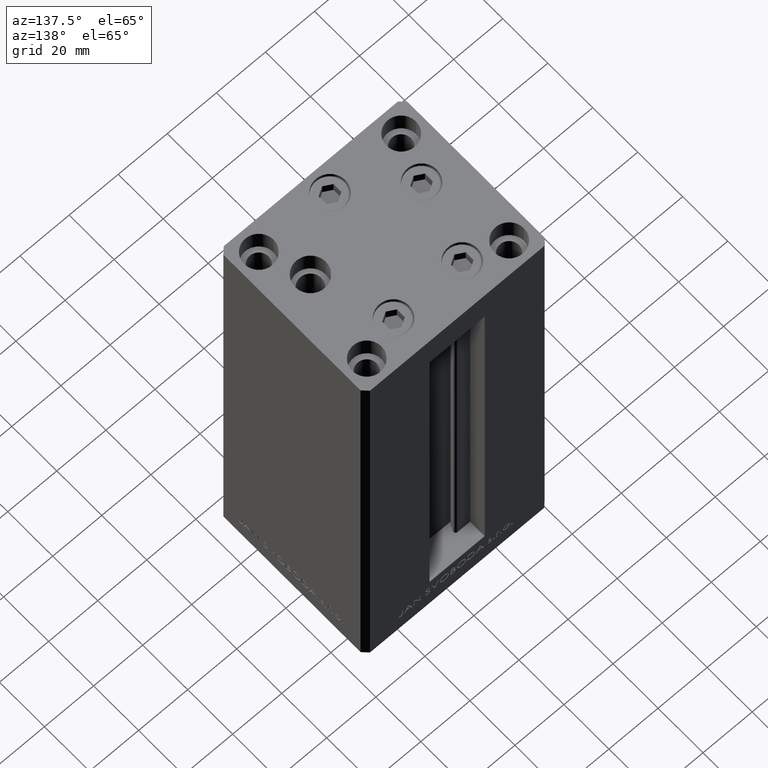
[diagram: clean part render]
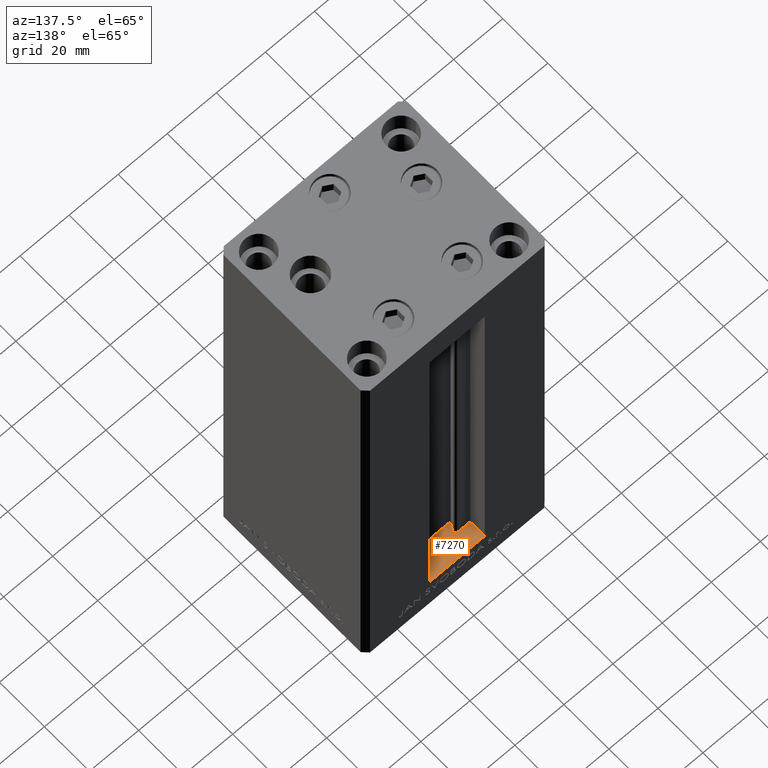
[diagram: same view with one face highlighted and labeled with its STEP entity id]
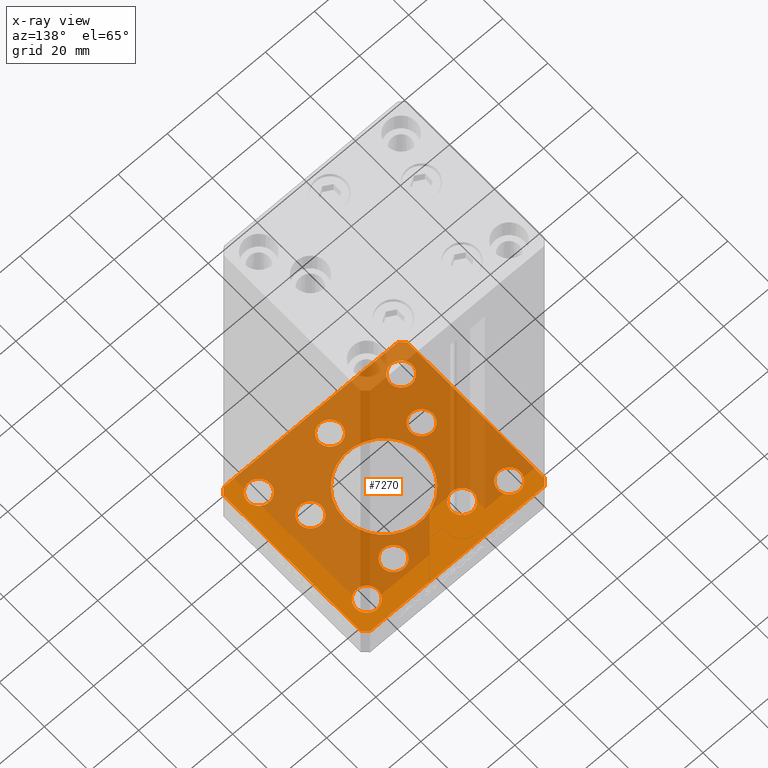
[diagram: x-ray of the same camera — body ghosted, the highlighted face saturated]
A machine part, auxiliary view. The second image highlights one B-rep face of the part: STEP entity #7270.
The next image is the same camera in x-ray: the body ghosted, the highlighted face saturated — about 74% of this face is hidden behind the body in this view.
In plain terms, the highlighted planar face has unit normal (0, 0, -1).
Its self-contained STEP definition (entity closure, byte-faithful):
#744 = EDGE_CURVE ( 'NONE', #14242, #25635, #47192, .T. ) ;
#753 = DIRECTION ( 'NONE',  ( 1.000000000000000000, 0.000000000000000000, 0.000000000000000000 ) ) ;
#813 = LINE ( 'NONE', #15895, #35857 ) ;
#921 = VECTOR ( 'NONE', #43430, 1000.000000000000000 ) ;
#1585 = FACE_BOUND ( 'NONE', #12310, .T. ) ;
#1620 = CARTESIAN_POINT ( 'NONE',  ( -24.50000000000000000, -23.99999999999999645, -15.00000000000000000 ) ) ;
#1739 = DIRECTION ( 'NONE',  ( -0.000000000000000000, 0.000000000000000000, 1.000000000000000000 ) ) ;
#2234 = DIRECTION ( 'NONE',  ( 1.000000000000000000, 0.000000000000000000, 0.000000000000000000 ) ) ;
#2283 = AXIS2_PLACEMENT_3D ( 'NONE', #8196, #29996, #45091 ) ;
#3581 = ORIENTED_EDGE ( 'NONE', *, *, #5545, .T. ) ;
#4059 = CARTESIAN_POINT ( 'NONE',  ( -13.99106857963324124, 19.50000000000000000, -15.00000000000000000 ) ) ;
#4102 = CIRCLE ( 'NONE', #19097, 4.500000000000000888 ) ;
#4244 = DIRECTION ( 'NONE',  ( -0.000000000000000000, 0.000000000000000000, 1.000000000000000000 ) ) ;
#4296 = EDGE_CURVE ( 'NONE', #23023, #23320, #14317, .T. ) ;
#4532 = CARTESIAN_POINT ( 'NONE',  ( 37.50000000000000711, -30.49999999999992895, -15.00000000000000000 ) ) ;
#4542 = EDGE_CURVE ( 'NONE', #34844, #5459, #24899, .T. ) ;
#4612 = CARTESIAN_POINT ( 'NONE',  ( 0.000000000000000000, 0.000000000000000000, -15.00000000000000000 ) ) ;
#4618 = EDGE_CURVE ( 'NONE', #15342, #26009, #10072, .T. ) ;
#4983 = AXIS2_PLACEMENT_3D ( 'NONE', #21015, #1739, #2234 ) ;
#5052 = FACE_BOUND ( 'NONE', #15544, .T. ) ;
#5271 = CARTESIAN_POINT ( 'NONE',  ( 35.50000000000000000, 32.49999999999999289, -15.00000000000000000 ) ) ;
#5459 = VERTEX_POINT ( 'NONE', #45378 ) ;
#5497 = CIRCLE ( 'NONE', #33140, 4.499999999999999112 ) ;
#5545 = EDGE_CURVE ( 'NONE', #13033, #47146, #40229, .T. ) ;
#5819 = VERTEX_POINT ( 'NONE', #44964 ) ;
#5919 = VERTEX_POINT ( 'NONE', #41724 ) ;
#6020 = FACE_BOUND ( 'NONE', #42254, .T. ) ;
#6089 = DIRECTION ( 'NONE',  ( -0.000000000000000000, 0.000000000000000000, 1.000000000000000000 ) ) ;
#6096 = CARTESIAN_POINT ( 'NONE',  ( -4.500000000000001776, -24.00000000000001066, -15.00000000000000000 ) ) ;
#6179 = EDGE_CURVE ( 'NONE', #47219, #10048, #23647, .T. ) ;
#6272 = VERTEX_POINT ( 'NONE', #48115 ) ;
#6371 = DIRECTION ( 'NONE',  ( 2.275047181608926165E-16, -1.000000000000000000, 0.000000000000000000 ) ) ;
#6967 = CARTESIAN_POINT ( 'NONE',  ( 18.49106857963324657, 19.50000000000000000, -15.00000000000000000 ) ) ;
#7041 = DIRECTION ( 'NONE',  ( 1.000000000000000000, 0.000000000000000000, 0.000000000000000000 ) ) ;
#7270 = ADVANCED_FACE ( 'NONE', ( #1585, #20614, #36202, #5052, #46609, #43393, #39921, #24075, #35723, #6020, #47083 ), #20126, .F. ) ;
#7585 = VERTEX_POINT ( 'NONE', #31944 ) ;
#7775 = DIRECTION ( 'NONE',  ( 1.000000000000000000, 0.000000000000000000, 0.000000000000000000 ) ) ;
#8165 = EDGE_LOOP ( 'NONE', ( #24904, #24652 ) ) ;
#8196 = CARTESIAN_POINT ( 'NONE',  ( 0.000000000000000000, -24.00000000000001066, -15.00000000000000000 ) ) ;
#8327 = EDGE_CURVE ( 'NONE', #7585, #34844, #9713, .T. ) ;
#8768 = CIRCLE ( 'NONE', #34053, 4.500000000000000888 ) ;
#9147 = DIRECTION ( 'NONE',  ( 1.000000000000000000, 0.000000000000000000, 0.000000000000000000 ) ) ;
#9239 = DIRECTION ( 'NONE',  ( 1.000000000000000000, 0.000000000000000000, 0.000000000000000000 ) ) ;
#9365 = VERTEX_POINT ( 'NONE', #22545 ) ;
#9419 = CARTESIAN_POINT ( 'NONE',  ( 29.00000000000000355, -23.99999999999999645, -15.00000000000000000 ) ) ;
#9467 = ORIENTED_EDGE ( 'NONE', *, *, #8327, .F. ) ;
#9492 = DIRECTION ( 'NONE',  ( 0.000000000000000000, -0.000000000000000000, -1.000000000000000000 ) ) ;
#9532 = AXIS2_PLACEMENT_3D ( 'NONE', #26018, #14409, #21816 ) ;
#9670 = CIRCLE ( 'NONE', #37328, 16.00000000000000000 ) ;
#9713 = LINE ( 'NONE', #5271, #42433 ) ;
#10048 = VERTEX_POINT ( 'NONE', #30594 ) ;
#10072 = CIRCLE ( 'NONE', #26647, 4.500000000000005329 ) ;
#11134 = EDGE_CURVE ( 'NONE', #5459, #5819, #25401, .T. ) ;
#11178 = ORIENTED_EDGE ( 'NONE', *, *, #41470, .T. ) ;
#11417 = VERTEX_POINT ( 'NONE', #17439 ) ;
#11992 = DIRECTION ( 'NONE',  ( -0.000000000000000000, 0.000000000000000000, 1.000000000000000000 ) ) ;
#12137 = DIRECTION ( 'NONE',  ( 1.000000000000000000, 0.000000000000000000, 0.000000000000000000 ) ) ;
#12310 = EDGE_LOOP ( 'NONE', ( #36556, #19784 ) ) ;
#12435 = CIRCLE ( 'NONE', #40110, 4.500000000000005329 ) ;
#12497 = VECTOR ( 'NONE', #6371, 1000.000000000000000 ) ;
#12708 = CARTESIAN_POINT ( 'NONE',  ( -29.00000000000000000, -23.99999999999999645, -15.00000000000000000 ) ) ;
#12714 = EDGE_CURVE ( 'NONE', #42993, #30898, #48106, .T. ) ;
#12783 = CARTESIAN_POINT ( 'NONE',  ( 35.50000000000001421, -32.49999999999992184, -15.00000000000000000 ) ) ;
#12813 = AXIS2_PLACEMENT_3D ( 'NONE', #19911, #27322, #45905 ) ;
#12946 = CARTESIAN_POINT ( 'NONE',  ( 0.000000000000000000, 0.000000000000000000, -15.00000000000000000 ) ) ;
#13019 = VERTEX_POINT ( 'NONE', #30414 ) ;
#13033 = VERTEX_POINT ( 'NONE', #23220 ) ;
#13883 = ORIENTED_EDGE ( 'NONE', *, *, #11134, .F. ) ;
#14242 = VERTEX_POINT ( 'NONE', #16970 ) ;
#14298 = ORIENTED_EDGE ( 'NONE', *, *, #48499, .T. ) ;
#14317 = LINE ( 'NONE', #48686, #41683 ) ;
#14409 = DIRECTION ( 'NONE',  ( -0.000000000000000000, 0.000000000000000000, 1.000000000000000000 ) ) ;
#14561 = EDGE_CURVE ( 'NONE', #10048, #47219, #16457, .T. ) ;
#15342 = VERTEX_POINT ( 'NONE', #32015 ) ;
#15544 = EDGE_LOOP ( 'NONE', ( #14298, #18653 ) ) ;
#15895 = CARTESIAN_POINT ( 'NONE',  ( -37.50000000000000000, -30.50000000000004263, -15.00000000000000000 ) ) ;
#16211 = CARTESIAN_POINT ( 'NONE',  ( -27.12741699796953299, -8.000000000000000000, -15.00000000000000000 ) ) ;
#16284 = VERTEX_POINT ( 'NONE', #38228 ) ;
#16457 = CIRCLE ( 'NONE', #23544, 4.500000000000000888 ) ;
#16516 = EDGE_LOOP ( 'NONE', ( #32258, #13883, #39179, #9467, #39554, #17903, #34012, #47889 ) ) ;
#16662 = DIRECTION ( 'NONE',  ( 1.000000000000000000, 0.000000000000000000, 0.000000000000000000 ) ) ;
#16764 = ORIENTED_EDGE ( 'NONE', *, *, #22913, .T. ) ;
#16970 = CARTESIAN_POINT ( 'NONE',  ( -33.50000000000000000, -23.99999999999999645, -15.00000000000000000 ) ) ;
#17412 = CIRCLE ( 'NONE', #45882, 16.00000000000000000 ) ;
#17439 = CARTESIAN_POINT ( 'NONE',  ( -33.50000000000000000, 24.00000000000000711, -15.00000000000000000 ) ) ;
#17850 = EDGE_CURVE ( 'NONE', #9365, #35412, #45064, .T. ) ;
#17903 = ORIENTED_EDGE ( 'NONE', *, *, #4296, .F. ) ;
#18035 = CARTESIAN_POINT ( 'NONE',  ( 37.50000000000000711, 30.50000000000001421, -15.00000000000000000 ) ) ;
#18082 = ORIENTED_EDGE ( 'NONE', *, *, #42364, .T. ) ;
#18466 = CARTESIAN_POINT ( 'NONE',  ( -37.50000000000001421, 30.50000000000000000, -15.00000000000000000 ) ) ;
#18653 = ORIENTED_EDGE ( 'NONE', *, *, #24824, .T. ) ;
#19018 = EDGE_LOOP ( 'NONE', ( #39484, #18082 ) ) ;
#19097 = AXIS2_PLACEMENT_3D ( 'NONE', #24056, #42643, #39163 ) ;
#19136 = DIRECTION ( 'NONE',  ( -0.000000000000000000, 0.000000000000000000, 1.000000000000000000 ) ) ;
#19156 = DIRECTION ( 'NONE',  ( 0.000000000000000000, -0.000000000000000000, -1.000000000000000000 ) ) ;
#19261 = EDGE_LOOP ( 'NONE', ( #34443, #48061 ) ) ;
#19484 = CARTESIAN_POINT ( 'NONE',  ( 0.000000000000000000, 0.000000000000000000, -15.00000000000000000 ) ) ;
#19688 = DIRECTION ( 'NONE',  ( 0.000000000000000000, -0.000000000000000000, -1.000000000000000000 ) ) ;
#19719 = EDGE_CURVE ( 'NONE', #32319, #6272, #17412, .T. ) ;
#19784 = ORIENTED_EDGE ( 'NONE', *, *, #29405, .F. ) ;
#19911 = CARTESIAN_POINT ( 'NONE',  ( 22.62741699796953299, -8.000000000000000000, -15.00000000000000000 ) ) ;
#19945 = CIRCLE ( 'NONE', #12813, 4.500000000000000888 ) ;
#20123 = EDGE_CURVE ( 'NONE', #13019, #40271, #34008, .T. ) ;
#20126 = PLANE ( 'NONE',  #21819 ) ;
#20335 = EDGE_CURVE ( 'NONE', #40271, #13019, #30862, .T. ) ;
#20348 = DIRECTION ( 'NONE',  ( -1.000000000000000000, -1.954618001100627573E-16, 0.000000000000000000 ) ) ;
#20525 = AXIS2_PLACEMENT_3D ( 'NONE', #38368, #4244, #12137 ) ;
#20596 = CIRCLE ( 'NONE', #46676, 4.499999999999997335 ) ;
#20614 = FACE_BOUND ( 'NONE', #35582, .T. ) ;
#21013 = CARTESIAN_POINT ( 'NONE',  ( -22.62741699796953299, -8.000000000000000000, -15.00000000000000000 ) ) ;
#21015 = CARTESIAN_POINT ( 'NONE',  ( -29.00000000000000000, 24.00000000000000711, -15.00000000000000000 ) ) ;
#21170 = CARTESIAN_POINT ( 'NONE',  ( 13.99106857963324124, 19.50000000000000000, -15.00000000000000000 ) ) ;
#21363 = AXIS2_PLACEMENT_3D ( 'NONE', #9419, #24011, #24747 ) ;
#21655 = DIRECTION ( 'NONE',  ( 1.000000000000000000, 0.000000000000000000, 0.000000000000000000 ) ) ;
#21816 = DIRECTION ( 'NONE',  ( 1.000000000000000000, 0.000000000000000000, 0.000000000000000000 ) ) ;
#21819 = AXIS2_PLACEMENT_3D ( 'NONE', #12946, #24316, #16662 ) ;
#22065 = CARTESIAN_POINT ( 'NONE',  ( 22.62741699796953299, -8.000000000000000000, -15.00000000000000000 ) ) ;
#22473 = ORIENTED_EDGE ( 'NONE', *, *, #43722, .T. ) ;
#22545 = CARTESIAN_POINT ( 'NONE',  ( -35.50000000000001421, -32.50000000000000711, -15.00000000000000000 ) ) ;
#22781 = ORIENTED_EDGE ( 'NONE', *, *, #744, .F. ) ;
#22788 = EDGE_CURVE ( 'NONE', #23320, #7585, #32531, .T. ) ;
#22913 = EDGE_CURVE ( 'NONE', #38557, #11417, #28575, .T. ) ;
#23023 = VERTEX_POINT ( 'NONE', #4532 ) ;
#23032 = EDGE_CURVE ( 'NONE', #25635, #14242, #4102, .T. ) ;
#23220 = CARTESIAN_POINT ( 'NONE',  ( -18.49106857963323947, 19.50000000000000000, -15.00000000000000000 ) ) ;
#23320 = VERTEX_POINT ( 'NONE', #18035 ) ;
#23393 = DIRECTION ( 'NONE',  ( 1.000000000000000000, 0.000000000000000000, 0.000000000000000000 ) ) ;
#23544 = AXIS2_PLACEMENT_3D ( 'NONE', #38448, #19156, #7775 ) ;
#23647 = CIRCLE ( 'NONE', #31542, 4.500000000000000888 ) ;
#23789 = AXIS2_PLACEMENT_3D ( 'NONE', #25813, #30511, #44649 ) ;
#23834 = CARTESIAN_POINT ( 'NONE',  ( 35.50000000000001421, -32.49999999999992184, -15.00000000000000000 ) ) ;
#24011 = DIRECTION ( 'NONE',  ( -0.000000000000000000, 0.000000000000000000, 1.000000000000000000 ) ) ;
#24056 = CARTESIAN_POINT ( 'NONE',  ( -29.00000000000000000, -23.99999999999999645, -15.00000000000000000 ) ) ;
#24075 = FACE_BOUND ( 'NONE', #44027, .T. ) ;
#24153 = CARTESIAN_POINT ( 'NONE',  ( -35.50000000000000711, 32.49999999999997868, -15.00000000000000000 ) ) ;
#24316 = DIRECTION ( 'NONE',  ( -0.000000000000000000, 0.000000000000000000, 1.000000000000000000 ) ) ;
#24424 = CARTESIAN_POINT ( 'NONE',  ( -13.99106857963324124, 19.50000000000000000, -15.00000000000000000 ) ) ;
#24449 = CARTESIAN_POINT ( 'NONE',  ( 16.00000000000000000, 0.000000000000000000, -15.00000000000000000 ) ) ;
#24530 = EDGE_CURVE ( 'NONE', #35412, #23023, #46689, .T. ) ;
#24652 = ORIENTED_EDGE ( 'NONE', *, *, #4618, .T. ) ;
#24747 = DIRECTION ( 'NONE',  ( 1.000000000000000000, 0.000000000000000000, 0.000000000000000000 ) ) ;
#24824 = EDGE_CURVE ( 'NONE', #41229, #5919, #19945, .T. ) ;
#24897 = DIRECTION ( 'NONE',  ( 0.7071067811865463515, 0.7071067811865487940, 0.000000000000000000 ) ) ;
#24899 = LINE ( 'NONE', #24153, #36143 ) ;
#24904 = ORIENTED_EDGE ( 'NONE', *, *, #36622, .T. ) ;
#24970 = CARTESIAN_POINT ( 'NONE',  ( 18.12741699796953299, -8.000000000000000000, -15.00000000000000000 ) ) ;
#25401 = LINE ( 'NONE', #18466, #12497 ) ;
#25635 = VERTEX_POINT ( 'NONE', #1620 ) ;
#25695 = VERTEX_POINT ( 'NONE', #16211 ) ;
#25813 = CARTESIAN_POINT ( 'NONE',  ( -29.00000000000000000, 24.00000000000000711, -15.00000000000000000 ) ) ;
#25821 = CARTESIAN_POINT ( 'NONE',  ( 29.00000000000000000, 24.00000000000000355, -15.00000000000000000 ) ) ;
#26009 = VERTEX_POINT ( 'NONE', #6967 ) ;
#26018 = CARTESIAN_POINT ( 'NONE',  ( 29.00000000000000355, -23.99999999999999645, -15.00000000000000000 ) ) ;
#26312 = EDGE_CURVE ( 'NONE', #11417, #38557, #31827, .T. ) ;
#26647 = AXIS2_PLACEMENT_3D ( 'NONE', #34770, #11992, #45908 ) ;
#26790 = DIRECTION ( 'NONE',  ( 1.000000000000000000, 0.000000000000000000, 0.000000000000000000 ) ) ;
#27155 = DIRECTION ( 'NONE',  ( 0.000000000000000000, -0.000000000000000000, -1.000000000000000000 ) ) ;
#27322 = DIRECTION ( 'NONE',  ( -0.000000000000000000, 0.000000000000000000, 1.000000000000000000 ) ) ;
#27827 = VECTOR ( 'NONE', #24897, 1000.000000000000000 ) ;
#27957 = DIRECTION ( 'NONE',  ( -0.000000000000000000, 0.000000000000000000, 1.000000000000000000 ) ) ;
#28575 = CIRCLE ( 'NONE', #23789, 4.500000000000000888 ) ;
#29405 = EDGE_CURVE ( 'NONE', #6272, #32319, #9670, .T. ) ;
#29470 = ORIENTED_EDGE ( 'NONE', *, *, #26312, .T. ) ;
#29996 = DIRECTION ( 'NONE',  ( -0.000000000000000000, 0.000000000000000000, 1.000000000000000000 ) ) ;
#30211 = CARTESIAN_POINT ( 'NONE',  ( -35.50000000000001421, -32.50000000000000711, -15.00000000000000000 ) ) ;
#30380 = DIRECTION ( 'NONE',  ( 0.000000000000000000, 1.000000000000000000, 0.000000000000000000 ) ) ;
#30414 = CARTESIAN_POINT ( 'NONE',  ( 24.50000000000000711, -23.99999999999999645, -15.00000000000000000 ) ) ;
#30415 = CARTESIAN_POINT ( 'NONE',  ( -24.50000000000000000, 24.00000000000000711, -15.00000000000000000 ) ) ;
#30511 = DIRECTION ( 'NONE',  ( -0.000000000000000000, 0.000000000000000000, 1.000000000000000000 ) ) ;
#30594 = CARTESIAN_POINT ( 'NONE',  ( 24.50000000000000000, 24.00000000000000355, -15.00000000000000000 ) ) ;
#30648 = EDGE_LOOP ( 'NONE', ( #43331, #31003 ) ) ;
#30846 = CIRCLE ( 'NONE', #42696, 4.499999999999997335 ) ;
#30862 = CIRCLE ( 'NONE', #21363, 4.499999999999997335 ) ;
#30885 = DIRECTION ( 'NONE',  ( 1.000000000000000000, 0.000000000000000000, 0.000000000000000000 ) ) ;
#30898 = VERTEX_POINT ( 'NONE', #6096 ) ;
#30998 = DIRECTION ( 'NONE',  ( 0.7071067811865512365, -0.7071067811865439090, 0.000000000000000000 ) ) ;
#31003 = ORIENTED_EDGE ( 'NONE', *, *, #20123, .T. ) ;
#31542 = AXIS2_PLACEMENT_3D ( 'NONE', #25821, #36746, #7041 ) ;
#31827 = CIRCLE ( 'NONE', #4983, 4.500000000000000888 ) ;
#31847 = DIRECTION ( 'NONE',  ( -0.7071067811865524577, -0.7071067811865426878, 0.000000000000000000 ) ) ;
#31944 = CARTESIAN_POINT ( 'NONE',  ( 35.50000000000000000, 32.49999999999999289, -15.00000000000000000 ) ) ;
#32015 = CARTESIAN_POINT ( 'NONE',  ( 9.491068579633235913, 19.50000000000000000, -15.00000000000000000 ) ) ;
#32137 = EDGE_CURVE ( 'NONE', #5819, #9365, #813, .T. ) ;
#32258 = ORIENTED_EDGE ( 'NONE', *, *, #32137, .F. ) ;
#32319 = VERTEX_POINT ( 'NONE', #24449 ) ;
#32343 = AXIS2_PLACEMENT_3D ( 'NONE', #4059, #19136, #26790 ) ;
#32531 = LINE ( 'NONE', #36738, #921 ) ;
#33140 = AXIS2_PLACEMENT_3D ( 'NONE', #24424, #43011, #35330 ) ;
#33938 = VECTOR ( 'NONE', #42076, 1000.000000000000000 ) ;
#34008 = CIRCLE ( 'NONE', #9532, 4.499999999999997335 ) ;
#34012 = ORIENTED_EDGE ( 'NONE', *, *, #24530, .F. ) ;
#34053 = AXIS2_PLACEMENT_3D ( 'NONE', #22065, #38143, #34189 ) ;
#34189 = DIRECTION ( 'NONE',  ( 1.000000000000000000, 0.000000000000000000, 0.000000000000000000 ) ) ;
#34193 = EDGE_LOOP ( 'NONE', ( #11178, #3581 ) ) ;
#34342 = CARTESIAN_POINT ( 'NONE',  ( -35.50000000000000711, 32.49999999999997868, -15.00000000000000000 ) ) ;
#34443 = ORIENTED_EDGE ( 'NONE', *, *, #6179, .F. ) ;
#34645 = DIRECTION ( 'NONE',  ( -0.000000000000000000, 0.000000000000000000, 1.000000000000000000 ) ) ;
#34770 = CARTESIAN_POINT ( 'NONE',  ( 13.99106857963324124, 19.50000000000000000, -15.00000000000000000 ) ) ;
#34844 = VERTEX_POINT ( 'NONE', #34342 ) ;
#35330 = DIRECTION ( 'NONE',  ( 1.000000000000000000, 0.000000000000000000, 0.000000000000000000 ) ) ;
#35412 = VERTEX_POINT ( 'NONE', #23834 ) ;
#35582 = EDGE_LOOP ( 'NONE', ( #35873, #22473 ) ) ;
#35723 = FACE_OUTER_BOUND ( 'NONE', #16516, .T. ) ;
#35857 = VECTOR ( 'NONE', #30998, 1000.000000000000000 ) ;
#35873 = ORIENTED_EDGE ( 'NONE', *, *, #44562, .T. ) ;
#36025 = ORIENTED_EDGE ( 'NONE', *, *, #23032, .F. ) ;
#36143 = VECTOR ( 'NONE', #31847, 1000.000000000000000 ) ;
#36202 = FACE_BOUND ( 'NONE', #19018, .T. ) ;
#36556 = ORIENTED_EDGE ( 'NONE', *, *, #19719, .F. ) ;
#36622 = EDGE_CURVE ( 'NONE', #26009, #15342, #12435, .T. ) ;
#36738 = CARTESIAN_POINT ( 'NONE',  ( 37.50000000000000711, 30.50000000000001421, -15.00000000000000000 ) ) ;
#36746 = DIRECTION ( 'NONE',  ( 0.000000000000000000, -0.000000000000000000, -1.000000000000000000 ) ) ;
#37137 = CIRCLE ( 'NONE', #20525, 4.500000000000001776 ) ;
#37328 = AXIS2_PLACEMENT_3D ( 'NONE', #19484, #27155, #30885 ) ;
#38143 = DIRECTION ( 'NONE',  ( -0.000000000000000000, 0.000000000000000000, 1.000000000000000000 ) ) ;
#38228 = CARTESIAN_POINT ( 'NONE',  ( -18.12741699796953654, -8.000000000000000000, -15.00000000000000000 ) ) ;
#38368 = CARTESIAN_POINT ( 'NONE',  ( 0.000000000000000000, -24.00000000000001066, -15.00000000000000000 ) ) ;
#38448 = CARTESIAN_POINT ( 'NONE',  ( 29.00000000000000000, 24.00000000000000355, -15.00000000000000000 ) ) ;
#38557 = VERTEX_POINT ( 'NONE', #30415 ) ;
#39163 = DIRECTION ( 'NONE',  ( 1.000000000000000000, 0.000000000000000000, 0.000000000000000000 ) ) ;
#39179 = ORIENTED_EDGE ( 'NONE', *, *, #4542, .F. ) ;
#39221 = CARTESIAN_POINT ( 'NONE',  ( 33.50000000000000000, 24.00000000000000355, -15.00000000000000000 ) ) ;
#39484 = ORIENTED_EDGE ( 'NONE', *, *, #12714, .T. ) ;
#39554 = ORIENTED_EDGE ( 'NONE', *, *, #22788, .F. ) ;
#39921 = FACE_BOUND ( 'NONE', #19261, .T. ) ;
#40110 = AXIS2_PLACEMENT_3D ( 'NONE', #21170, #6089, #21655 ) ;
#40229 = CIRCLE ( 'NONE', #32343, 4.499999999999999112 ) ;
#40271 = VERTEX_POINT ( 'NONE', #46083 ) ;
#41229 = VERTEX_POINT ( 'NONE', #24970 ) ;
#41470 = EDGE_CURVE ( 'NONE', #47146, #13033, #5497, .T. ) ;
#41683 = VECTOR ( 'NONE', #30380, 1000.000000000000000 ) ;
#41724 = CARTESIAN_POINT ( 'NONE',  ( 27.12741699796953654, -8.000000000000000000, -15.00000000000000000 ) ) ;
#41830 = CARTESIAN_POINT ( 'NONE',  ( -22.62741699796953299, -8.000000000000000000, -15.00000000000000000 ) ) ;
#42076 = DIRECTION ( 'NONE',  ( 1.000000000000000000, 1.172770800660376149E-15, 0.000000000000000000 ) ) ;
#42254 = EDGE_LOOP ( 'NONE', ( #16764, #29470 ) ) ;
#42364 = EDGE_CURVE ( 'NONE', #30898, #42993, #37137, .T. ) ;
#42433 = VECTOR ( 'NONE', #20348, 1000.000000000000000 ) ;
#42470 = AXIS2_PLACEMENT_3D ( 'NONE', #12708, #9492, #9239 ) ;
#42643 = DIRECTION ( 'NONE',  ( 0.000000000000000000, -0.000000000000000000, -1.000000000000000000 ) ) ;
#42696 = AXIS2_PLACEMENT_3D ( 'NONE', #41830, #34645, #753 ) ;
#42993 = VERTEX_POINT ( 'NONE', #48060 ) ;
#43011 = DIRECTION ( 'NONE',  ( -0.000000000000000000, 0.000000000000000000, 1.000000000000000000 ) ) ;
#43331 = ORIENTED_EDGE ( 'NONE', *, *, #20335, .T. ) ;
#43393 = FACE_BOUND ( 'NONE', #34193, .T. ) ;
#43430 = DIRECTION ( 'NONE',  ( -0.7071067811865524577, 0.7071067811865426878, 0.000000000000000000 ) ) ;
#43722 = EDGE_CURVE ( 'NONE', #25695, #16284, #30846, .T. ) ;
#44027 = EDGE_LOOP ( 'NONE', ( #36025, #22781 ) ) ;
#44562 = EDGE_CURVE ( 'NONE', #16284, #25695, #20596, .T. ) ;
#44649 = DIRECTION ( 'NONE',  ( 1.000000000000000000, 0.000000000000000000, 0.000000000000000000 ) ) ;
#44964 = CARTESIAN_POINT ( 'NONE',  ( -37.50000000000000000, -30.50000000000004263, -15.00000000000000000 ) ) ;
#45064 = LINE ( 'NONE', #30211, #33938 ) ;
#45091 = DIRECTION ( 'NONE',  ( 1.000000000000000000, 0.000000000000000000, 0.000000000000000000 ) ) ;
#45201 = CARTESIAN_POINT ( 'NONE',  ( -9.491068579633243019, 19.50000000000000000, -15.00000000000000000 ) ) ;
#45378 = CARTESIAN_POINT ( 'NONE',  ( -37.50000000000001421, 30.50000000000000000, -15.00000000000000000 ) ) ;
#45882 = AXIS2_PLACEMENT_3D ( 'NONE', #4612, #19688, #23393 ) ;
#45905 = DIRECTION ( 'NONE',  ( 1.000000000000000000, 0.000000000000000000, 0.000000000000000000 ) ) ;
#45908 = DIRECTION ( 'NONE',  ( 1.000000000000000000, 0.000000000000000000, 0.000000000000000000 ) ) ;
#46083 = CARTESIAN_POINT ( 'NONE',  ( 33.50000000000000000, -23.99999999999999645, -15.00000000000000000 ) ) ;
#46609 = FACE_BOUND ( 'NONE', #8165, .T. ) ;
#46676 = AXIS2_PLACEMENT_3D ( 'NONE', #21013, #27957, #9147 ) ;
#46689 = LINE ( 'NONE', #12783, #27827 ) ;
#47083 = FACE_BOUND ( 'NONE', #30648, .T. ) ;
#47146 = VERTEX_POINT ( 'NONE', #45201 ) ;
#47192 = CIRCLE ( 'NONE', #42470, 4.500000000000000888 ) ;
#47219 = VERTEX_POINT ( 'NONE', #39221 ) ;
#47889 = ORIENTED_EDGE ( 'NONE', *, *, #17850, .F. ) ;
#48060 = CARTESIAN_POINT ( 'NONE',  ( 4.500000000000001776, -24.00000000000001066, -15.00000000000000000 ) ) ;
#48061 = ORIENTED_EDGE ( 'NONE', *, *, #14561, .F. ) ;
#48106 = CIRCLE ( 'NONE', #2283, 4.500000000000001776 ) ;
#48115 = CARTESIAN_POINT ( 'NONE',  ( -16.00000000000000000, 1.959434878635765131E-15, -15.00000000000000000 ) ) ;
#48499 = EDGE_CURVE ( 'NONE', #5919, #41229, #8768, .T. ) ;
#48686 = CARTESIAN_POINT ( 'NONE',  ( 37.50000000000000711, -30.49999999999992895, -15.00000000000000000 ) ) ;